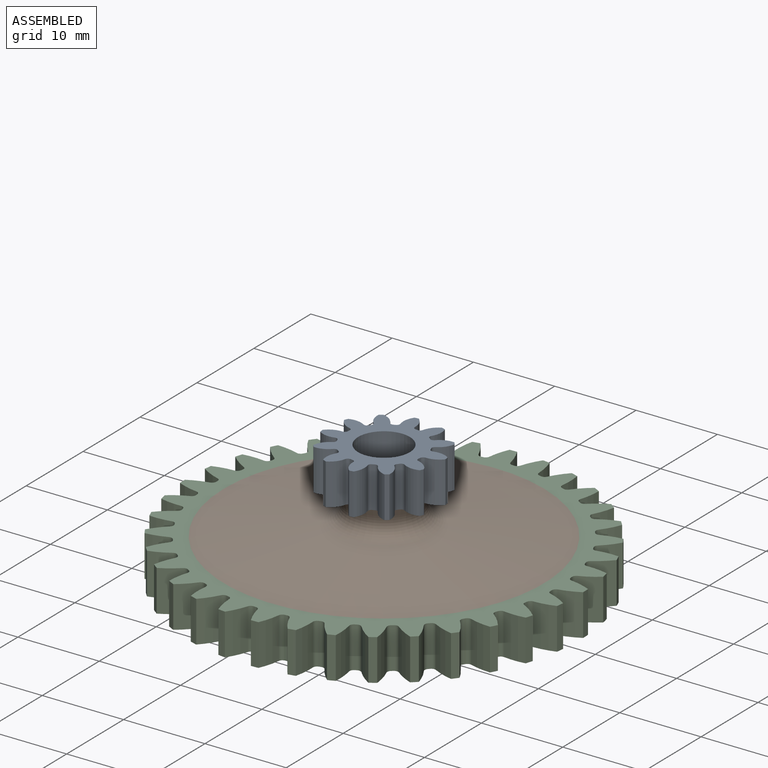
[diagram: assembled view]
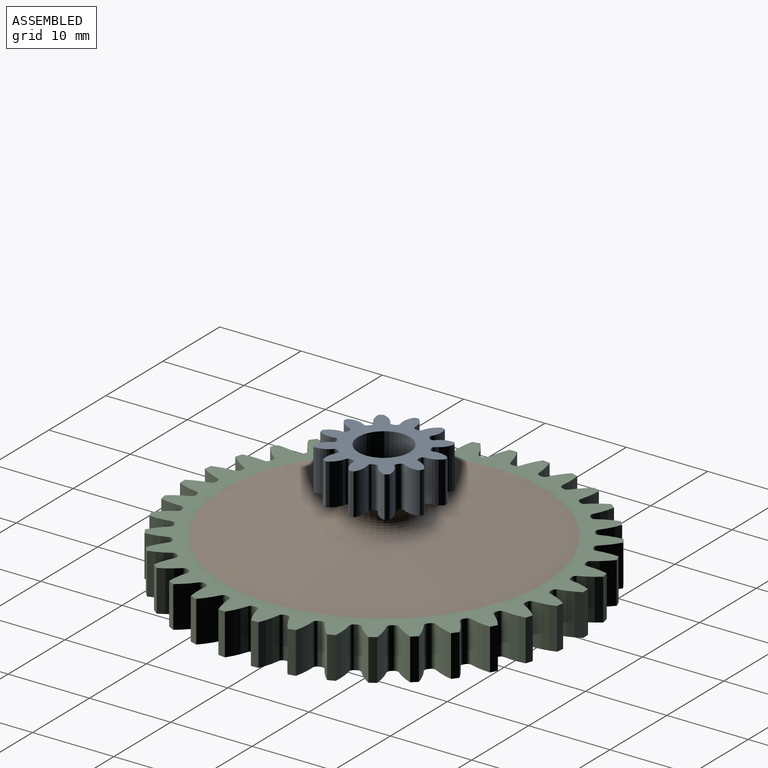
[diagram: assembled view, second angle]
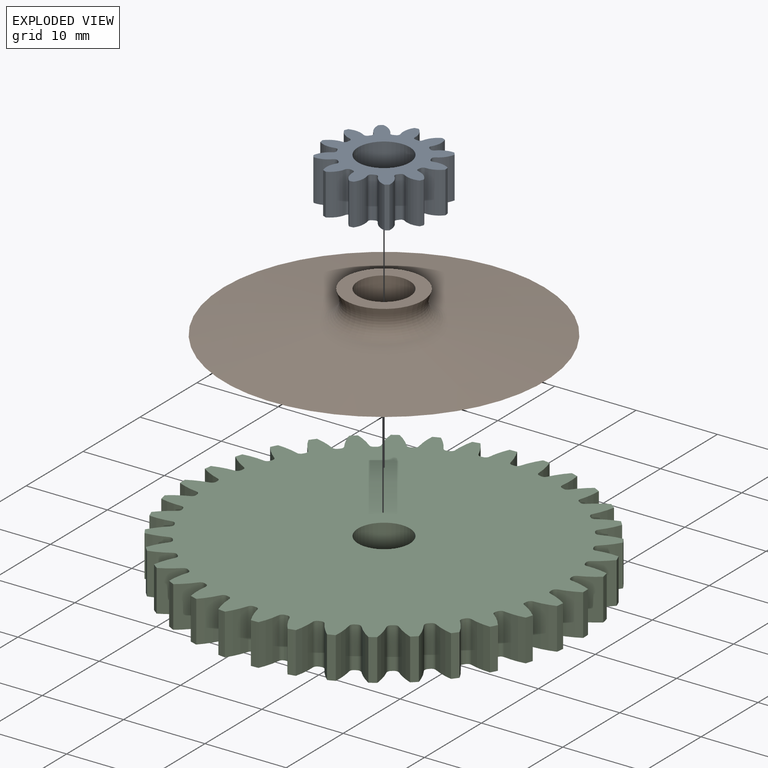
[diagram: exploded view]
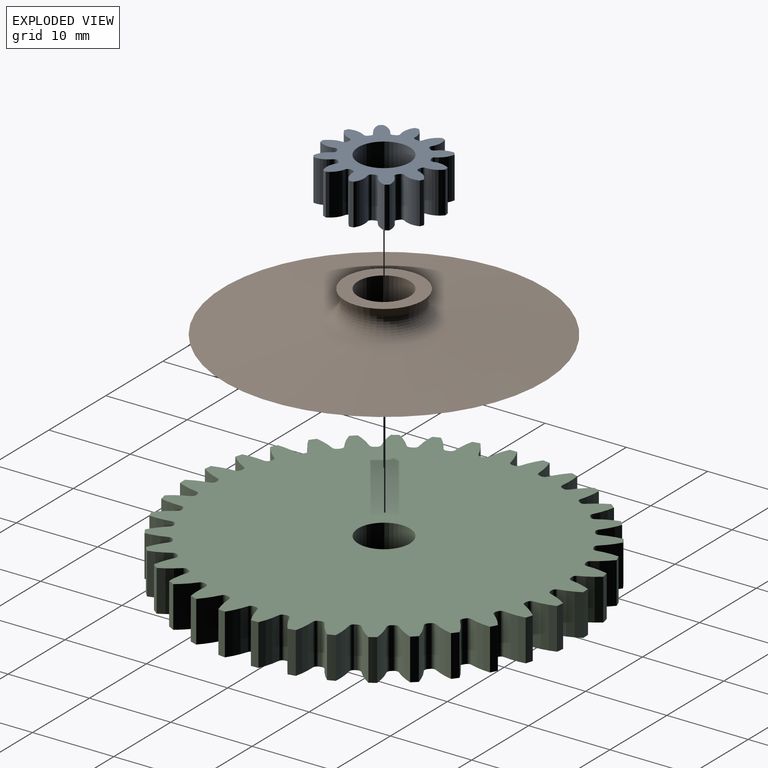
[diagram: exploded view, second angle]
ASSEMBLY  parts=3 mates=4
PART A: 75 faces, bbox 14.2x14.2x5.1 mm
  f0: cylinder r=3.18mm len=6.36mm, axis (0,0,1), area 101.5mm2, adj f63,f74
  f1: cylinder r=0.39mm len=5.08mm, axis (0,0,-1), area 3mm2, adj f58,f59,f63,f74
  f2: cylinder r=0.39mm len=5.08mm, axis (0,0,-1), area 3mm2, adj f54,f55,f63,f74
  f3: cylinder r=0.39mm len=5.08mm, axis (0,0,-1), area 3mm2, adj f50,f51,f63,f74
  f4: cylinder r=2.35mm len=5.08mm, axis (0,0,-1), area 10.7mm2, adj f48,f63,f65,f74
  f5: cylinder r=2.35mm len=5.08mm, axis (0,0,-1), area 10.7mm2, adj f44,f63,f66,f74
  f6: cylinder r=2.35mm len=5.08mm, axis (0,0,-1), area 10.7mm2, adj f28,f63,f70,f74
  f7: cylinder r=2.35mm len=5.08mm, axis (0,0,-1), area 10.7mm2, adj f24,f63,f71,f74
  f8: cylinder r=0.39mm len=5.08mm, axis (0,0,-1), area 3mm2, adj f19,f22,f63,f74
  f9: cylinder r=0.39mm len=5.08mm, axis (0,0,-1), area 3mm2, adj f15,f18,f63,f74
  f10: cylinder r=0.39mm len=5.08mm, axis (0,0,-1), area 3mm2, adj f11,f14,f63,f74
  f11: cylinder r=2.35mm len=5.08mm, axis (0,0,-1), area 10.7mm2, adj f10,f63,f73,f74
  f12: cylinder r=2.35mm len=5.08mm, axis (0,0,-1), area 10.7mm2, adj f13,f61,f63,f74
  f13: cylinder r=0.39mm len=5.08mm, axis (0,0,-1), area 3mm2, adj f12,f14,f63,f74
  f14: cylinder r=4.84mm len=5.08mm, axis (0,0,-1), area 1.4mm2, adj f10,f13,f63,f74
  f15: cylinder r=2.35mm len=5.08mm, axis (0,0,-1), area 10.7mm2, adj f9,f63,f72,f74
  f16: cylinder r=2.35mm len=5.08mm, axis (0,0,-1), area 10.7mm2, adj f17,f63,f73,f74
  f17: cylinder r=0.39mm len=5.08mm, axis (0,0,-1), area 3mm2, adj f16,f18,f63,f74
  f18: cylinder r=4.84mm len=5.08mm, axis (0,0,-1), area 1.4mm2, adj f9,f17,f63,f74
  f19: cylinder r=2.35mm len=5.08mm, axis (0,0,-1), area 10.7mm2, adj f8,f63,f71,f74
  f20: cylinder r=2.35mm len=5.08mm, axis (0,0,-1), area 10.7mm2, adj f21,f63,f72,f74
  f21: cylinder r=0.39mm len=5.08mm, axis (0,0,-1), area 3mm2, adj f20,f22,f63,f74
  f22: cylinder r=4.84mm len=5.08mm, axis (0,0,-1), area 1.4mm2, adj f8,f21,f63,f74
  f23: cylinder r=2.35mm len=5.08mm, axis (0,0,-1), area 10.7mm2, adj f26,f63,f70,f74
  f24: cylinder r=0.39mm len=5.08mm, axis (0,0,-1), area 3mm2, adj f7,f25,f63,f74
  f25: cylinder r=4.84mm len=5.08mm, axis (0,0,-1), area 1.4mm2, adj f24,f26,f63,f74
  f26: cylinder r=0.39mm len=5.08mm, axis (0,0,-1), area 3mm2, adj f23,f25,f63,f74
  f27: cylinder r=2.35mm len=5.08mm, axis (0,0,-1), area 10.7mm2, adj f30,f63,f69,f74
  f28: cylinder r=0.39mm len=5.08mm, axis (0,0,-1), area 3mm2, adj f6,f29,f63,f74
  f29: cylinder r=4.84mm len=5.08mm, axis (0,0,-1), area 1.4mm2, adj f28,f30,f63,f74
  f30: cylinder r=0.39mm len=5.08mm, axis (0,0,-1), area 3mm2, adj f27,f29,f63,f74
  f31: cylinder r=2.35mm len=5.08mm, axis (0,0,-1), area 10.7mm2, adj f35,f63,f68,f74
  f32: cylinder r=2.35mm len=5.08mm, axis (0,0,-1), area 10.7mm2, adj f33,f63,f69,f74
  f33: cylinder r=0.39mm len=5.08mm, axis (0,0,-1), area 3mm2, adj f32,f34,f63,f74
  f34: cylinder r=4.84mm len=5.08mm, axis (0,0,-1), area 1.4mm2, adj f33,f35,f63,f74
  f35: cylinder r=0.39mm len=5.08mm, axis (0,0,-1), area 3mm2, adj f31,f34,f63,f74
  f36: cylinder r=2.35mm len=5.08mm, axis (0,0,-1), area 10.7mm2, adj f40,f63,f67,f74
  f37: cylinder r=2.35mm len=5.08mm, axis (0,0,-1), area 10.7mm2, adj f38,f63,f68,f74
  f38: cylinder r=0.39mm len=5.08mm, axis (0,0,-1), area 3mm2, adj f37,f39,f63,f74
  f39: cylinder r=4.84mm len=5.08mm, axis (0,0,-1), area 1.4mm2, adj f38,f40,f63,f74
  f40: cylinder r=0.39mm len=5.08mm, axis (0,0,-1), area 3mm2, adj f36,f39,f63,f74
  f41: cylinder r=2.35mm len=5.08mm, axis (0,0,-1), area 10.7mm2, adj f42,f63,f67,f74
  f42: cylinder r=0.39mm len=5.08mm, axis (0,0,-1), area 3mm2, adj f41,f43,f63,f74
  f43: cylinder r=4.84mm len=5.08mm, axis (0,0,-1), area 1.4mm2, adj f42,f44,f63,f74
  f44: cylinder r=0.39mm len=5.08mm, axis (0,0,-1), area 3mm2, adj f5,f43,f63,f74
  f45: cylinder r=2.35mm len=5.08mm, axis (0,0,-1), area 10.7mm2, adj f46,f63,f66,f74
  f46: cylinder r=0.39mm len=5.08mm, axis (0,0,-1), area 3mm2, adj f45,f47,f63,f74
  f47: cylinder r=4.84mm len=5.08mm, axis (0,0,-1), area 1.4mm2, adj f46,f48,f63,f74
  f48: cylinder r=0.39mm len=5.08mm, axis (0,0,-1), area 3mm2, adj f4,f47,f63,f74
  f49: cylinder r=2.35mm len=5.08mm, axis (0,0,-1), area 10.7mm2, adj f52,f63,f64,f74
  f50: cylinder r=2.35mm len=5.08mm, axis (0,0,-1), area 10.7mm2, adj f3,f63,f65,f74
  f51: cylinder r=4.84mm len=5.08mm, axis (0,0,-1), area 1.4mm2, adj f3,f52,f63,f74
  f52: cylinder r=0.39mm len=5.08mm, axis (0,0,-1), area 3mm2, adj f49,f51,f63,f74
  f53: cylinder r=2.35mm len=5.08mm, axis (0,0,-1), area 10.7mm2, adj f56,f62,f63,f74
  f54: cylinder r=2.35mm len=5.08mm, axis (0,0,-1), area 10.7mm2, adj f2,f63,f64,f74
  f55: cylinder r=4.84mm len=5.08mm, axis (0,0,-1), area 1.4mm2, adj f2,f56,f63,f74
  f56: cylinder r=0.39mm len=5.08mm, axis (0,0,-1), area 3mm2, adj f53,f55,f63,f74
  f57: cylinder r=2.35mm len=5.08mm, axis (0,0,-1), area 10.7mm2, adj f60,f61,f63,f74
  f58: cylinder r=2.35mm len=5.08mm, axis (0,0,-1), area 10.7mm2, adj f1,f62,f63,f74
  f59: cylinder r=4.84mm len=5.08mm, axis (0,0,-1), area 1.4mm2, adj f1,f60,f63,f74
  f60: cylinder r=0.39mm len=5.08mm, axis (0,0,-1), area 3mm2, adj f57,f59,f63,f74
  f61: cylinder r=7.11mm len=5.08mm, axis (0,0,-1), area 2.5mm2, adj f12,f57,f63,f74
  f62: cylinder r=7.11mm len=5.08mm, axis (0,0,-1), area 2.5mm2, adj f53,f58,f63,f74
  f63: plane 14.16x14.16mm, normal (0,0,-1), area 81.8mm2, adj f0,f1,f2,f3,f4,f5,f6,f7
  f64: cylinder r=7.11mm len=5.08mm, axis (0,0,-1), area 2.5mm2, adj f49,f54,f63,f74
  f65: cylinder r=7.11mm len=5.08mm, axis (0,0,-1), area 2.5mm2, adj f4,f50,f63,f74
  f66: cylinder r=7.11mm len=5.08mm, axis (0,0,-1), area 2.5mm2, adj f5,f45,f63,f74
  f67: cylinder r=7.11mm len=5.08mm, axis (0,0,-1), area 2.5mm2, adj f36,f41,f63,f74
  f68: cylinder r=7.11mm len=5.08mm, axis (0,0,-1), area 2.5mm2, adj f31,f37,f63,f74
  f69: cylinder r=7.11mm len=5.08mm, axis (0,0,-1), area 2.5mm2, adj f27,f32,f63,f74
  f70: cylinder r=7.11mm len=5.08mm, axis (0,0,-1), area 2.5mm2, adj f6,f23,f63,f74
  f71: cylinder r=7.11mm len=5.08mm, axis (0,0,-1), area 2.5mm2, adj f7,f19,f63,f74
  f72: cylinder r=7.11mm len=5.08mm, axis (0,0,-1), area 2.5mm2, adj f15,f20,f63,f74
  f73: cylinder r=7.11mm len=5.08mm, axis (0,0,-1), area 2.5mm2, adj f11,f16,f63,f74
  f74: plane 14.16x14.16mm, normal (0,0,1), area 81.8mm2, adj f0,f1,f2,f3,f4,f5,f6,f7
PART B: 6 faces, bbox 39.4x39.4x5.2 mm
  f0: cylinder r=3.17mm len=6.35mm, axis (0,0,-1), area 101.3mm2, adj f1,f5
  f1: plane 39.37x39.37mm, normal (0,0,-1), area 1185.7mm2, adj f0,f2
  f2: cone r=6.28mm half-angle=82.7deg, axis (0,0,-1), area 1102.6mm2, adj f1,f3
  f3: torus R=6.54mm, axis (0,0,-1), area 112.2mm2, adj f2,f4
  f4: cone r=4.83mm half-angle=17.3deg, axis (0,0,1), area 22.8mm2, adj f3,f5
  f5: plane 9.65x9.65mm, normal (0,0,1), area 41.5mm2, adj f0,f4
PART C: 219 faces, bbox 48.2x48.2x5.1 mm
  f0: cylinder r=0.51mm len=5.08mm, axis (0,0,-1), area 3.4mm2, adj f176,f179,f217,f218
  f1: cylinder r=0.51mm len=5.08mm, axis (0,0,-1), area 3.4mm2, adj f172,f174,f217,f218
  f2: cylinder r=0.51mm len=5.08mm, axis (0,0,-1), area 3.4mm2, adj f168,f170,f217,f218
  f3: cylinder r=0.51mm len=5.08mm, axis (0,0,-1), area 3.4mm2, adj f164,f166,f217,f218
  f4: cylinder r=0.51mm len=5.08mm, axis (0,0,-1), area 3.4mm2, adj f160,f162,f217,f218
  f5: cylinder r=0.51mm len=5.08mm, axis (0,0,-1), area 3.4mm2, adj f156,f158,f217,f218
  f6: cylinder r=0.51mm len=5.08mm, axis (0,0,-1), area 3.4mm2, adj f152,f154,f217,f218
  f7: cylinder r=8.8mm len=5.08mm, axis (0,0,-1), area 13.4mm2, adj f135,f191,f217,f218
  f8: cylinder r=8.8mm len=5.08mm, axis (0,0,-1), area 13.4mm2, adj f69,f205,f217,f218
  f9: cylinder r=8.8mm len=5.08mm, axis (0,0,-1), area 13.4mm2, adj f65,f206,f217,f218
  f10: cylinder r=0.51mm len=5.08mm, axis (0,0,-1), area 3.4mm2, adj f47,f49,f217,f218
  f11: cylinder r=0.51mm len=5.08mm, axis (0,0,-1), area 3.4mm2, adj f43,f45,f217,f218
  f12: cylinder r=0.51mm len=5.08mm, axis (0,0,-1), area 3.4mm2, adj f39,f41,f217,f218
  f13: cylinder r=0.51mm len=5.08mm, axis (0,0,-1), area 3.4mm2, adj f35,f37,f217,f218
  f14: cylinder r=0.51mm len=5.08mm, axis (0,0,-1), area 3.4mm2, adj f31,f33,f217,f218
  f15: cylinder r=0.51mm len=5.08mm, axis (0,0,-1), area 3.4mm2, adj f27,f29,f217,f218
  f16: cylinder r=0.51mm len=5.08mm, axis (0,0,-1), area 3.4mm2, adj f24,f25,f217,f218
  f17: cylinder r=0.51mm len=5.08mm, axis (0,0,-1), area 3.4mm2, adj f18,f21,f217,f218
  f18: cylinder r=8.8mm len=5.08mm, axis (0,0,-1), area 13.4mm2, adj f17,f182,f217,f218
  f19: cylinder r=8.8mm len=5.08mm, axis (0,0,-1), area 13.4mm2, adj f20,f216,f217,f218
  f20: cylinder r=0.51mm len=5.08mm, axis (0,0,-1), area 3.4mm2, adj f19,f21,f217,f218
  f21: cylinder r=21.29mm len=5.08mm, axis (0,0,-1), area 1.3mm2, adj f17,f20,f217,f218
  f22: cylinder r=8.8mm len=5.08mm, axis (0,0,-1), area 13.4mm2, adj f23,f216,f217,f218
  f23: cylinder r=0.51mm len=5.08mm, axis (0,0,-1), area 3.4mm2, adj f22,f24,f217,f218
  f24: cylinder r=21.29mm len=5.08mm, axis (0,0,-1), area 1.3mm2, adj f16,f23,f217,f218
  f25: cylinder r=8.8mm len=5.08mm, axis (0,0,-1), area 13.4mm2, adj f16,f215,f217,f218
  f26: cylinder r=0.51mm len=5.08mm, axis (0,0,-1), area 3.4mm2, adj f27,f28,f217,f218
  f27: cylinder r=21.29mm len=5.08mm, axis (0,0,-1), area 1.3mm2, adj f15,f26,f217,f218
  f28: cylinder r=8.8mm len=5.08mm, axis (0,0,-1), area 13.4mm2, adj f26,f215,f217,f218
  f29: cylinder r=8.8mm len=5.08mm, axis (0,0,-1), area 13.4mm2, adj f15,f214,f217,f218
  f30: cylinder r=0.51mm len=5.08mm, axis (0,0,-1), area 3.4mm2, adj f31,f32,f217,f218
  f31: cylinder r=21.29mm len=5.08mm, axis (0,0,-1), area 1.3mm2, adj f14,f30,f217,f218
  f32: cylinder r=8.8mm len=5.08mm, axis (0,0,-1), area 13.4mm2, adj f30,f214,f217,f218
  f33: cylinder r=8.8mm len=5.08mm, axis (0,0,-1), area 13.4mm2, adj f14,f213,f217,f218
  f34: cylinder r=0.51mm len=5.08mm, axis (0,0,-1), area 3.4mm2, adj f35,f36,f217,f218
  f35: cylinder r=21.29mm len=5.08mm, axis (0,0,-1), area 1.3mm2, adj f13,f34,f217,f218
  f36: cylinder r=8.8mm len=5.08mm, axis (0,0,-1), area 13.4mm2, adj f34,f213,f217,f218
  f37: cylinder r=8.8mm len=5.08mm, axis (0,0,-1), area 13.4mm2, adj f13,f212,f217,f218
  f38: cylinder r=0.51mm len=5.08mm, axis (0,0,-1), area 3.4mm2, adj f39,f40,f217,f218
  f39: cylinder r=21.29mm len=5.08mm, axis (0,0,-1), area 1.3mm2, adj f12,f38,f217,f218
  f40: cylinder r=8.8mm len=5.08mm, axis (0,0,-1), area 13.4mm2, adj f38,f212,f217,f218
  f41: cylinder r=8.8mm len=5.08mm, axis (0,0,-1), area 13.4mm2, adj f12,f211,f217,f218
  f42: cylinder r=0.51mm len=5.08mm, axis (0,0,-1), area 3.4mm2, adj f43,f44,f217,f218
  f43: cylinder r=21.29mm len=5.08mm, axis (0,0,-1), area 1.3mm2, adj f11,f42,f217,f218
  f44: cylinder r=8.8mm len=5.08mm, axis (0,0,-1), area 13.4mm2, adj f42,f211,f217,f218
  f45: cylinder r=8.8mm len=5.08mm, axis (0,0,-1), area 13.4mm2, adj f11,f210,f217,f218
  f46: cylinder r=0.51mm len=5.08mm, axis (0,0,-1), area 3.4mm2, adj f47,f48,f217,f218
  f47: cylinder r=21.29mm len=5.08mm, axis (0,0,-1), area 1.3mm2, adj f10,f46,f217,f218
  f48: cylinder r=8.8mm len=5.08mm, axis (0,0,-1), area 13.4mm2, adj f46,f210,f217,f218
  f49: cylinder r=8.8mm len=5.08mm, axis (0,0,-1), area 13.4mm2, adj f10,f209,f217,f218
  f50: cylinder r=0.51mm len=5.08mm, axis (0,0,-1), area 3.4mm2, adj f51,f53,f217,f218
  f51: cylinder r=21.29mm len=5.08mm, axis (0,0,-1), area 1.3mm2, adj f50,f52,f217,f218
  f52: cylinder r=0.51mm len=5.08mm, axis (0,0,-1), area 3.4mm2, adj f51,f54,f217,f218
  f53: cylinder r=8.8mm len=5.08mm, axis (0,0,-1), area 13.4mm2, adj f50,f209,f217,f218
  f54: cylinder r=8.8mm len=5.08mm, axis (0,0,-1), area 13.4mm2, adj f52,f208,f217,f218
  f55: cylinder r=0.51mm len=5.08mm, axis (0,0,-1), area 3.4mm2, adj f56,f58,f217,f218
  f56: cylinder r=21.29mm len=5.08mm, axis (0,0,-1), area 1.3mm2, adj f55,f57,f217,f218
  f57: cylinder r=0.51mm len=5.08mm, axis (0,0,-1), area 3.4mm2, adj f56,f59,f217,f218
  f58: cylinder r=8.8mm len=5.08mm, axis (0,0,-1), area 13.4mm2, adj f55,f208,f217,f218
  f59: cylinder r=8.8mm len=5.08mm, axis (0,0,-1), area 13.4mm2, adj f57,f207,f217,f218
  f60: cylinder r=0.51mm len=5.08mm, axis (0,0,-1), area 3.4mm2, adj f61,f63,f217,f218
  f61: cylinder r=21.29mm len=5.08mm, axis (0,0,-1), area 1.3mm2, adj f60,f62,f217,f218
  f62: cylinder r=0.51mm len=5.08mm, axis (0,0,-1), area 3.4mm2, adj f61,f64,f217,f218
  f63: cylinder r=8.8mm len=5.08mm, axis (0,0,-1), area 13.4mm2, adj f60,f207,f217,f218
  f64: cylinder r=8.8mm len=5.08mm, axis (0,0,-1), area 13.4mm2, adj f62,f206,f217,f218
  f65: cylinder r=0.51mm len=5.08mm, axis (0,0,-1), area 3.4mm2, adj f9,f66,f217,f218
  f66: cylinder r=21.29mm len=5.08mm, axis (0,0,-1), area 1.3mm2, adj f65,f67,f217,f218
  f67: cylinder r=0.51mm len=5.08mm, axis (0,0,-1), area 3.4mm2, adj f66,f68,f217,f218
  f68: cylinder r=8.8mm len=5.08mm, axis (0,0,-1), area 13.4mm2, adj f67,f205,f217,f218
  f69: cylinder r=0.51mm len=5.08mm, axis (0,0,-1), area 3.4mm2, adj f8,f70,f217,f218
  f70: cylinder r=21.29mm len=5.08mm, axis (0,0,-1), area 1.3mm2, adj f69,f71,f217,f218
  f71: cylinder r=0.51mm len=5.08mm, axis (0,0,-1), area 3.4mm2, adj f70,f72,f217,f218
  f72: cylinder r=8.8mm len=5.08mm, axis (0,0,-1), area 13.4mm2, adj f71,f204,f217,f218
  f73: cylinder r=0.51mm len=5.08mm, axis (0,0,-1), area 3.4mm2, adj f74,f76,f217,f218
  f74: cylinder r=21.29mm len=5.08mm, axis (0,0,-1), area 1.3mm2, adj f73,f75,f217,f218
  f75: cylinder r=0.51mm len=5.08mm, axis (0,0,-1), area 3.4mm2, adj f74,f77,f217,f218
  f76: cylinder r=8.8mm len=5.08mm, axis (0,0,-1), area 13.4mm2, adj f73,f204,f217,f218
  f77: cylinder r=8.8mm len=5.08mm, axis (0,0,-1), area 13.4mm2, adj f75,f203,f217,f218
  f78: cylinder r=0.51mm len=5.08mm, axis (0,0,-1), area 3.4mm2, adj f79,f81,f217,f218
  f79: cylinder r=21.29mm len=5.08mm, axis (0,0,-1), area 1.3mm2, adj f78,f80,f217,f218
  f80: cylinder r=0.51mm len=5.08mm, axis (0,0,-1), area 3.4mm2, adj f79,f82,f217,f218
  f81: cylinder r=8.8mm len=5.08mm, axis (0,0,-1), area 13.4mm2, adj f78,f203,f217,f218
  f82: cylinder r=8.8mm len=5.08mm, axis (0,0,-1), area 13.4mm2, adj f80,f202,f217,f218
  f83: cylinder r=0.51mm len=5.08mm, axis (0,0,-1), area 3.4mm2, adj f84,f86,f217,f218
  f84: cylinder r=21.29mm len=5.08mm, axis (0,0,-1), area 1.3mm2, adj f83,f85,f217,f218
  f85: cylinder r=0.51mm len=5.08mm, axis (0,0,-1), area 3.4mm2, adj f84,f87,f217,f218
  f86: cylinder r=8.8mm len=5.08mm, axis (0,0,-1), area 13.4mm2, adj f83,f202,f217,f218
  f87: cylinder r=8.8mm len=5.08mm, axis (0,0,-1), area 13.4mm2, adj f85,f201,f217,f218
  f88: cylinder r=0.51mm len=5.08mm, axis (0,0,-1), area 3.4mm2, adj f89,f91,f217,f218
  f89: cylinder r=21.29mm len=5.08mm, axis (0,0,-1), area 1.3mm2, adj f88,f90,f217,f218
  f90: cylinder r=0.51mm len=5.08mm, axis (0,0,-1), area 3.4mm2, adj f89,f92,f217,f218
  f91: cylinder r=8.8mm len=5.08mm, axis (0,0,-1), area 13.4mm2, adj f88,f201,f217,f218
  f92: cylinder r=8.8mm len=5.08mm, axis (0,0,-1), area 13.4mm2, adj f90,f200,f217,f218
  f93: cylinder r=0.51mm len=5.08mm, axis (0,0,-1), area 3.4mm2, adj f94,f96,f217,f218
  f94: cylinder r=21.29mm len=5.08mm, axis (0,0,-1), area 1.3mm2, adj f93,f95,f217,f218
  f95: cylinder r=0.51mm len=5.08mm, axis (0,0,-1), area 3.4mm2, adj f94,f97,f217,f218
  f96: cylinder r=8.8mm len=5.08mm, axis (0,0,-1), area 13.4mm2, adj f93,f200,f217,f218
  f97: cylinder r=8.8mm len=5.08mm, axis (0,0,-1), area 13.4mm2, adj f95,f199,f217,f218
  f98: cylinder r=0.51mm len=5.08mm, axis (0,0,-1), area 3.4mm2, adj f99,f101,f217,f218
  f99: cylinder r=21.29mm len=5.08mm, axis (0,0,-1), area 1.3mm2, adj f98,f100,f217,f218
  f100: cylinder r=0.51mm len=5.08mm, axis (0,0,-1), area 3.4mm2, adj f99,f102,f217,f218
  f101: cylinder r=8.8mm len=5.08mm, axis (0,0,-1), area 13.4mm2, adj f98,f199,f217,f218
  f102: cylinder r=8.8mm len=5.08mm, axis (0,0,-1), area 13.4mm2, adj f100,f198,f217,f218
  f103: cylinder r=0.51mm len=5.08mm, axis (0,0,-1), area 3.4mm2, adj f104,f106,f217,f218
  f104: cylinder r=21.29mm len=5.08mm, axis (0,0,-1), area 1.3mm2, adj f103,f105,f217,f218
  f105: cylinder r=0.51mm len=5.08mm, axis (0,0,-1), area 3.4mm2, adj f104,f107,f217,f218
  f106: cylinder r=8.8mm len=5.08mm, axis (0,0,-1), area 13.4mm2, adj f103,f198,f217,f218
  f107: cylinder r=8.8mm len=5.08mm, axis (0,0,-1), area 13.4mm2, adj f105,f197,f217,f218
  f108: cylinder r=0.51mm len=5.08mm, axis (0,0,-1), area 3.4mm2, adj f109,f111,f217,f218
  f109: cylinder r=21.29mm len=5.08mm, axis (0,0,-1), area 1.3mm2, adj f108,f110,f217,f218
  f110: cylinder r=0.51mm len=5.08mm, axis (0,0,-1), area 3.4mm2, adj f109,f112,f217,f218
  f111: cylinder r=8.8mm len=5.08mm, axis (0,0,-1), area 13.4mm2, adj f108,f197,f217,f218
  f112: cylinder r=8.8mm len=5.08mm, axis (0,0,-1), area 13.4mm2, adj f110,f196,f217,f218
  f113: cylinder r=0.51mm len=5.08mm, axis (0,0,-1), area 3.4mm2, adj f114,f116,f217,f218
  f114: cylinder r=21.29mm len=5.08mm, axis (0,0,-1), area 1.3mm2, adj f113,f115,f217,f218
  f115: cylinder r=0.51mm len=5.08mm, axis (0,0,-1), area 3.4mm2, adj f114,f117,f217,f218
  f116: cylinder r=8.8mm len=5.08mm, axis (0,0,-1), area 13.4mm2, adj f113,f196,f217,f218
  f117: cylinder r=8.8mm len=5.08mm, axis (0,0,-1), area 13.4mm2, adj f115,f195,f217,f218
  f118: cylinder r=0.51mm len=5.08mm, axis (0,0,-1), area 3.4mm2, adj f119,f121,f217,f218
  f119: cylinder r=21.29mm len=5.08mm, axis (0,0,-1), area 1.3mm2, adj f118,f120,f217,f218
  f120: cylinder r=0.51mm len=5.08mm, axis (0,0,-1), area 3.4mm2, adj f119,f122,f217,f218
  f121: cylinder r=8.8mm len=5.08mm, axis (0,0,-1), area 13.4mm2, adj f118,f195,f217,f218
  f122: cylinder r=8.8mm len=5.08mm, axis (0,0,-1), area 13.4mm2, adj f120,f194,f217,f218
  f123: cylinder r=0.51mm len=5.08mm, axis (0,0,-1), area 3.4mm2, adj f124,f126,f217,f218
  f124: cylinder r=21.29mm len=5.08mm, axis (0,0,-1), area 1.3mm2, adj f123,f125,f217,f218
  f125: cylinder r=0.51mm len=5.08mm, axis (0,0,-1), area 3.4mm2, adj f124,f127,f217,f218
  f126: cylinder r=8.8mm len=5.08mm, axis (0,0,-1), area 13.4mm2, adj f123,f194,f217,f218
  f127: cylinder r=8.8mm len=5.08mm, axis (0,0,-1), area 13.4mm2, adj f125,f193,f217,f218
  f128: cylinder r=0.51mm len=5.08mm, axis (0,0,-1), area 3.4mm2, adj f129,f131,f217,f218
  f129: cylinder r=21.29mm len=5.08mm, axis (0,0,-1), area 1.3mm2, adj f128,f130,f217,f218
  f130: cylinder r=0.51mm len=5.08mm, axis (0,0,-1), area 3.4mm2, adj f129,f132,f217,f218
  f131: cylinder r=8.8mm len=5.08mm, axis (0,0,-1), area 13.4mm2, adj f128,f193,f217,f218
  f132: cylinder r=8.8mm len=5.08mm, axis (0,0,-1), area 13.4mm2, adj f130,f192,f217,f218
  f133: cylinder r=0.51mm len=5.08mm, axis (0,0,-1), area 3.4mm2, adj f134,f136,f217,f218
  f134: cylinder r=21.29mm len=5.08mm, axis (0,0,-1), area 1.3mm2, adj f133,f135,f217,f218
  f135: cylinder r=0.51mm len=5.08mm, axis (0,0,-1), area 3.4mm2, adj f7,f134,f217,f218
  f136: cylinder r=8.8mm len=5.08mm, axis (0,0,-1), area 13.4mm2, adj f133,f192,f217,f218
  f137: cylinder r=0.51mm len=5.08mm, axis (0,0,-1), area 3.4mm2, adj f138,f140,f217,f218
  f138: cylinder r=21.29mm len=5.08mm, axis (0,0,-1), area 1.3mm2, adj f137,f139,f217,f218
  f139: cylinder r=0.51mm len=5.08mm, axis (0,0,-1), area 3.4mm2, adj f138,f141,f217,f218
  f140: cylinder r=8.8mm len=5.08mm, axis (0,0,-1), area 13.4mm2, adj f137,f191,f217,f218
  f141: cylinder r=8.8mm len=5.08mm, axis (0,0,-1), area 13.4mm2, adj f139,f190,f217,f218
  f142: cylinder r=0.51mm len=5.08mm, axis (0,0,-1), area 3.4mm2, adj f143,f145,f217,f218
  f143: cylinder r=21.29mm len=5.08mm, axis (0,0,-1), area 1.3mm2, adj f142,f144,f217,f218
  f144: cylinder r=0.51mm len=5.08mm, axis (0,0,-1), area 3.4mm2, adj f143,f146,f217,f218
  f145: cylinder r=8.8mm len=5.08mm, axis (0,0,-1), area 13.4mm2, adj f142,f190,f217,f218
  f146: cylinder r=8.8mm len=5.08mm, axis (0,0,-1), area 13.4mm2, adj f144,f189,f217,f218
  f147: cylinder r=0.51mm len=5.08mm, axis (0,0,-1), area 3.4mm2, adj f148,f150,f217,f218
  f148: cylinder r=21.29mm len=5.08mm, axis (0,0,-1), area 1.3mm2, adj f147,f149,f217,f218
  f149: cylinder r=0.51mm len=5.08mm, axis (0,0,-1), area 3.4mm2, adj f148,f151,f217,f218
  f150: cylinder r=8.8mm len=5.08mm, axis (0,0,-1), area 13.4mm2, adj f147,f189,f217,f218
  f151: cylinder r=8.8mm len=5.08mm, axis (0,0,-1), area 13.4mm2, adj f149,f188,f217,f218
  f152: cylinder r=21.29mm len=5.08mm, axis (0,0,-1), area 1.3mm2, adj f6,f153,f217,f218
  f153: cylinder r=0.51mm len=5.08mm, axis (0,0,-1), area 3.4mm2, adj f152,f155,f217,f218
  f154: cylinder r=8.8mm len=5.08mm, axis (0,0,-1), area 13.4mm2, adj f6,f188,f217,f218
  f155: cylinder r=8.8mm len=5.08mm, axis (0,0,-1), area 13.4mm2, adj f153,f187,f217,f218
  f156: cylinder r=21.29mm len=5.08mm, axis (0,0,-1), area 1.3mm2, adj f5,f157,f217,f218
  f157: cylinder r=0.51mm len=5.08mm, axis (0,0,-1), area 3.4mm2, adj f156,f159,f217,f218
  f158: cylinder r=8.8mm len=5.08mm, axis (0,0,-1), area 13.4mm2, adj f5,f187,f217,f218
  f159: cylinder r=8.8mm len=5.08mm, axis (0,0,-1), area 13.4mm2, adj f157,f186,f217,f218
  f160: cylinder r=21.29mm len=5.08mm, axis (0,0,-1), area 1.3mm2, adj f4,f161,f217,f218
  f161: cylinder r=0.51mm len=5.08mm, axis (0,0,-1), area 3.4mm2, adj f160,f163,f217,f218
  f162: cylinder r=8.8mm len=5.08mm, axis (0,0,-1), area 13.4mm2, adj f4,f186,f217,f218
  f163: cylinder r=8.8mm len=5.08mm, axis (0,0,-1), area 13.4mm2, adj f161,f185,f217,f218
  f164: cylinder r=21.29mm len=5.08mm, axis (0,0,-1), area 1.3mm2, adj f3,f165,f217,f218
  f165: cylinder r=0.51mm len=5.08mm, axis (0,0,-1), area 3.4mm2, adj f164,f167,f217,f218
  f166: cylinder r=8.8mm len=5.08mm, axis (0,0,-1), area 13.4mm2, adj f3,f185,f217,f218
  f167: cylinder r=8.8mm len=5.08mm, axis (0,0,-1), area 13.4mm2, adj f165,f184,f217,f218
  f168: cylinder r=21.29mm len=5.08mm, axis (0,0,-1), area 1.3mm2, adj f2,f169,f217,f218
  f169: cylinder r=0.51mm len=5.08mm, axis (0,0,-1), area 3.4mm2, adj f168,f171,f217,f218
  f170: cylinder r=8.8mm len=5.08mm, axis (0,0,-1), area 13.4mm2, adj f2,f184,f217,f218
  f171: cylinder r=8.8mm len=5.08mm, axis (0,0,-1), area 13.4mm2, adj f169,f183,f217,f218
  f172: cylinder r=21.29mm len=5.08mm, axis (0,0,-1), area 1.3mm2, adj f1,f173,f217,f218
  f173: cylinder r=0.51mm len=5.08mm, axis (0,0,-1), area 3.4mm2, adj f172,f175,f217,f218
  f174: cylinder r=8.8mm len=5.08mm, axis (0,0,-1), area 13.4mm2, adj f1,f183,f217,f218
  f175: cylinder r=8.8mm len=5.08mm, axis (0,0,-1), area 13.4mm2, adj f173,f181,f217,f218
  f176: cylinder r=8.8mm len=5.08mm, axis (0,0,-1), area 13.4mm2, adj f0,f181,f217,f218
  f177: cylinder r=8.8mm len=5.08mm, axis (0,0,-1), area 13.4mm2, adj f178,f182,f217,f218
  f178: cylinder r=0.51mm len=5.08mm, axis (0,0,-1), area 3.4mm2, adj f177,f179,f217,f218
  f179: cylinder r=21.29mm len=5.08mm, axis (0,0,-1), area 1.3mm2, adj f0,f178,f217,f218
  f180: cylinder r=3.17mm len=6.35mm, axis (0,0,1), area 101.3mm2, adj f217,f218
  f181: cylinder r=24.13mm len=5.08mm, axis (0,0,-1), area 4.6mm2, adj f175,f176,f217,f218
  f182: cylinder r=24.13mm len=5.08mm, axis (0,0,-1), area 4.6mm2, adj f18,f177,f217,f218
  f183: cylinder r=24.13mm len=5.08mm, axis (0,0,-1), area 4.6mm2, adj f171,f174,f217,f218
  f184: cylinder r=24.13mm len=5.08mm, axis (0,0,-1), area 4.6mm2, adj f167,f170,f217,f218
  f185: cylinder r=24.13mm len=5.08mm, axis (0,0,-1), area 4.6mm2, adj f163,f166,f217,f218
  f186: cylinder r=24.13mm len=5.08mm, axis (0,0,-1), area 4.6mm2, adj f159,f162,f217,f218
  f187: cylinder r=24.13mm len=5.08mm, axis (0,0,-1), area 4.6mm2, adj f155,f158,f217,f218
  f188: cylinder r=24.13mm len=5.08mm, axis (0,0,-1), area 4.6mm2, adj f151,f154,f217,f218
  f189: cylinder r=24.13mm len=5.08mm, axis (0,0,-1), area 4.6mm2, adj f146,f150,f217,f218
  f190: cylinder r=24.13mm len=5.08mm, axis (0,0,-1), area 4.6mm2, adj f141,f145,f217,f218
  f191: cylinder r=24.13mm len=5.08mm, axis (0,0,-1), area 4.6mm2, adj f7,f140,f217,f218
  f192: cylinder r=24.13mm len=5.08mm, axis (0,0,-1), area 4.6mm2, adj f132,f136,f217,f218
  f193: cylinder r=24.13mm len=5.08mm, axis (0,0,-1), area 4.6mm2, adj f127,f131,f217,f218
  f194: cylinder r=24.13mm len=5.08mm, axis (0,0,-1), area 4.6mm2, adj f122,f126,f217,f218
  f195: cylinder r=24.13mm len=5.08mm, axis (0,0,-1), area 4.6mm2, adj f117,f121,f217,f218
  f196: cylinder r=24.13mm len=5.08mm, axis (0,0,-1), area 4.6mm2, adj f112,f116,f217,f218
  f197: cylinder r=24.13mm len=5.08mm, axis (0,0,-1), area 4.6mm2, adj f107,f111,f217,f218
  f198: cylinder r=24.13mm len=5.08mm, axis (0,0,-1), area 4.6mm2, adj f102,f106,f217,f218
  f199: cylinder r=24.13mm len=5.08mm, axis (0,0,-1), area 4.6mm2, adj f97,f101,f217,f218
  f200: cylinder r=24.13mm len=5.08mm, axis (0,0,-1), area 4.6mm2, adj f92,f96,f217,f218
  f201: cylinder r=24.13mm len=5.08mm, axis (0,0,-1), area 4.6mm2, adj f87,f91,f217,f218
  f202: cylinder r=24.13mm len=5.08mm, axis (0,0,-1), area 4.6mm2, adj f82,f86,f217,f218
  f203: cylinder r=24.13mm len=5.08mm, axis (0,0,-1), area 4.6mm2, adj f77,f81,f217,f218
  f204: cylinder r=24.13mm len=5.08mm, axis (0,0,-1), area 4.6mm2, adj f72,f76,f217,f218
  f205: cylinder r=24.13mm len=5.08mm, axis (0,0,-1), area 4.6mm2, adj f8,f68,f217,f218
  f206: cylinder r=24.13mm len=5.08mm, axis (0,0,-1), area 4.6mm2, adj f9,f64,f217,f218
  f207: cylinder r=24.13mm len=5.08mm, axis (0,0,-1), area 4.6mm2, adj f59,f63,f217,f218
  f208: cylinder r=24.13mm len=5.08mm, axis (0,0,-1), area 4.6mm2, adj f54,f58,f217,f218
  f209: cylinder r=24.13mm len=5.08mm, axis (0,0,-1), area 4.6mm2, adj f49,f53,f217,f218
  f210: cylinder r=24.13mm len=5.08mm, axis (0,0,-1), area 4.6mm2, adj f45,f48,f217,f218
  f211: cylinder r=24.13mm len=5.08mm, axis (0,0,-1), area 4.6mm2, adj f41,f44,f217,f218
  f212: cylinder r=24.13mm len=5.08mm, axis (0,0,-1), area 4.6mm2, adj f37,f40,f217,f218
  f213: cylinder r=24.13mm len=5.08mm, axis (0,0,-1), area 4.6mm2, adj f33,f36,f217,f218
  f214: cylinder r=24.13mm len=5.08mm, axis (0,0,-1), area 4.6mm2, adj f29,f32,f217,f218
  f215: cylinder r=24.13mm len=5.08mm, axis (0,0,-1), area 4.6mm2, adj f25,f28,f217,f218
  f216: cylinder r=24.13mm len=5.08mm, axis (0,0,-1), area 4.6mm2, adj f19,f22,f217,f218
  f217: plane 48.25x48.25mm, normal (0,0,-1), area 1594.5mm2, adj f0,f1,f2,f3,f4,f5,f6,f7
  f218: plane 48.25x48.25mm, normal (0,0,1), area 1594.5mm2, adj f0,f1,f2,f3,f4,f5,f6,f7
PLACE A t=(-11.77,-6.02,8.78)mm
PLACE B t=(-11.77,-6.02,3.7)mm
PLACE C t=(-11.77,-6.02,-1.38)mm fixed
MATE planar C.f21 <-> B.f0  axis (0,0,1) through (-11.77,-6.02,3.7)mm
MATE cylindrical B.f0 <-> A.f0  axis (0,0,-1) through (-11.77,-6.02,6.24)mm
MATE cylindrical C.f180 <-> B.f0  axis (0,0,1) through (-11.77,-6.02,1.16)mm
MATE planar B.f0 <-> A.f0  axis (0,0,1) through (-11.77,-6.02,8.78)mm
